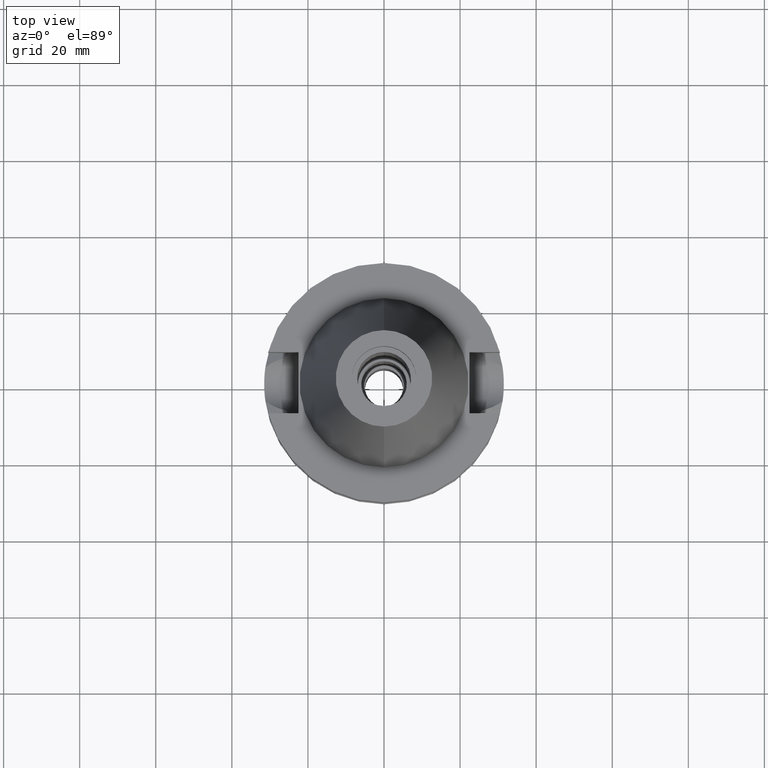
[diagram: clean part render]
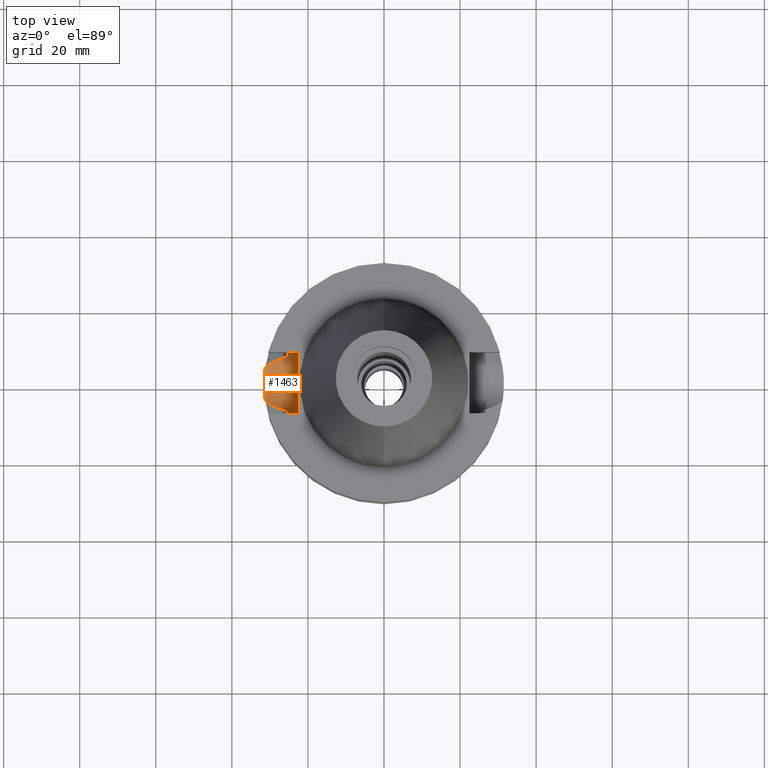
[diagram: same view with one face highlighted and labeled with its STEP entity id]
A machine part, top view. The second image highlights one B-rep face of the part: STEP entity #1463.
In plain terms, the highlighted cylindrical surface (edge-blend (fillet) strip) has radius 8.05 mm, axis along (-1, 0, 0).
Its self-contained STEP definition (entity closure, byte-faithful):
#177=CARTESIAN_POINT('',(-2.25E1,1.807578675541E-14,-1.495E1));
#178=DIRECTION('',(1.E0,0.E0,0.E0));
#179=DIRECTION('',(0.E0,-1.E0,1.919789379228E-14));
#180=AXIS2_PLACEMENT_3D('',#177,#178,#179);
#185=CARTESIAN_POINT('',(-2.25E1,1.807578675541E-14,-1.495E1));
#186=DIRECTION('',(1.E0,0.E0,0.E0));
#187=DIRECTION('',(0.E0,0.E0,-1.E0));
#188=AXIS2_PLACEMENT_3D('',#185,#186,#187);
#241=CARTESIAN_POINT('',(-2.553175183775E1,-7.097862220093E0,
-1.874774300139E1));
#242=CARTESIAN_POINT('',(-2.547271918594E1,-7.310208835141E0,
-1.835087385675E1));
#243=CARTESIAN_POINT('',(-2.536983558540E1,-7.660512735289E0,
-1.753882711767E1));
#244=CARTESIAN_POINT('',(-2.527033461079E1,-7.979621508937E0,
-1.625425445451E1));
#245=CARTESIAN_POINT('',(-2.524772266958E1,-8.05E0,-1.538828038445E1));
#246=CARTESIAN_POINT('',(-2.524772266958E1,-8.05E0,-1.495E1));
#361=CARTESIAN_POINT('',(-2.524772266958E1,8.05E0,-1.495E1));
#362=CARTESIAN_POINT('',(-2.524772266958E1,8.05E0,-1.538834950001E1));
#363=CARTESIAN_POINT('',(-2.527034219221E1,7.979597850830E0,-1.625441489124E1));
#364=CARTESIAN_POINT('',(-2.536984959230E1,7.660466517108E0,-1.753895015723E1));
#365=CARTESIAN_POINT('',(-2.547272650759E1,7.310182498380E0,-1.835092307933E1));
#366=CARTESIAN_POINT('',(-2.553175183775E1,7.097862220093E0,-1.874774300139E1));
#444=DIRECTION('',(1.E0,1.551559937893E-14,-3.620306521750E-14));
#445=VECTOR('',#444,2.747722669580E0);
#446=CARTESIAN_POINT('',(-2.524772266958E1,8.05E0,-1.495E1));
#447=LINE('',#446,#445);
#451=DIRECTION('',(-1.E0,1.616208268639E-14,-1.034373291929E-14));
#452=VECTOR('',#451,2.747722669580E0);
#453=CARTESIAN_POINT('',(-2.25E1,-8.05E0,-1.495E1));
#454=LINE('',#453,#452);
#458=CARTESIAN_POINT('',(-3.117899877609E1,-4.485536235554E0,
-2.163449434733E1));
#459=CARTESIAN_POINT('',(-3.081790690768E1,-4.759485314385E0,
-2.145066465791E1));
#460=CARTESIAN_POINT('',(-3.002924830243E1,-5.291914469826E0,
-2.104897836939E1));
#461=CARTESIAN_POINT('',(-2.847426700203E1,-6.083715656575E0,
-2.025542970766E1));
#462=CARTESIAN_POINT('',(-2.705383459640E1,-6.640442221704E0,
-1.952881381427E1));
#463=CARTESIAN_POINT('',(-2.604019647781E1,-6.958099501092E0,
-1.900895512728E1));
#464=CARTESIAN_POINT('',(-2.553175183775E1,-7.097862220093E0,
-1.874774300139E1));
#554=CARTESIAN_POINT('',(-2.553175183775E1,7.097862220093E0,-1.874774300139E1));
#555=CARTESIAN_POINT('',(-2.604301139702E1,6.957325728037E0,-1.901040128478E1));
#556=CARTESIAN_POINT('',(-2.700919654423E1,6.654600905991E0,-1.950590852273E1));
#557=CARTESIAN_POINT('',(-2.828273243056E1,6.156114099449E0,-2.015743109837E1));
#558=CARTESIAN_POINT('',(-2.939896234899E1,5.622905978368E0,-2.072740778783E1));
#559=CARTESIAN_POINT('',(-3.036659115201E1,5.065326816520E0,-2.122078619173E1));
#560=CARTESIAN_POINT('',(-3.092322003118E1,4.679587549588E0,-2.150427893306E1));
#561=CARTESIAN_POINT('',(-3.117899877609E1,4.485536235554E0,-2.163449434733E1));
#609=CARTESIAN_POINT('',(-3.117899877609E1,4.485536235554E0,-2.163449434733E1));
#610=CARTESIAN_POINT('',(-3.124432755678E1,4.031435350808E0,-2.193921238093E1));
#611=CARTESIAN_POINT('',(-3.135992226601E1,3.086731852897E0,-2.244039260075E1));
#612=CARTESIAN_POINT('',(-3.147352449813E1,1.574442090076E0,-2.289734580016E1));
#613=CARTESIAN_POINT('',(-3.151358048718E1,-1.471319843020E-2,
-2.305267495637E1));
#614=CARTESIAN_POINT('',(-3.147213491181E1,-1.599532263817E0,
-2.289189784277E1));
#615=CARTESIAN_POINT('',(-3.135823014352E1,-3.101891738597E0,
-2.243328986460E1));
#616=CARTESIAN_POINT('',(-3.124356931013E1,-4.036705929445E0,
-2.193567563301E1));
#617=CARTESIAN_POINT('',(-3.117899877609E1,-4.485536235554E0,
-2.163449434733E1));
#1061=VERTEX_POINT('',#458);
#1062=VERTEX_POINT('',#464);
#1065=VERTEX_POINT('',#554);
#1066=VERTEX_POINT('',#561);
#1069=VERTEX_POINT('',#361);
#1070=CARTESIAN_POINT('',(-2.25E1,8.05E0,-1.495E1));
#1071=VERTEX_POINT('',#1070);
#1072=CARTESIAN_POINT('',(-2.25E1,1.856870709207E-14,-2.3E1));
#1073=VERTEX_POINT('',#1072);
#1074=CARTESIAN_POINT('',(-2.25E1,-8.05E0,-1.495E1));
#1075=VERTEX_POINT('',#1074);
#1076=CARTESIAN_POINT('',(-2.524772266958E1,-8.05E0,-1.495E1));
#1077=VERTEX_POINT('',#1076);
#1444=CARTESIAN_POINT('',(-2.25E1,1.807578675541E-14,-1.495E1));
#1445=DIRECTION('',(-1.E0,0.E0,0.E0));
#1446=DIRECTION('',(0.E0,0.E0,-1.E0));
#1447=AXIS2_PLACEMENT_3D('',#1444,#1445,#1446);
#1448=CYLINDRICAL_SURFACE('',#1447,8.05E0);
#1450=ORIENTED_EDGE('',*,*,#1449,.F.);
#1452=ORIENTED_EDGE('',*,*,#1451,.F.);
#1454=ORIENTED_EDGE('',*,*,#1453,.F.);
#1455=ORIENTED_EDGE('',*,*,#1381,.F.);
#1456=ORIENTED_EDGE('',*,*,#1409,.T.);
#1457=ORIENTED_EDGE('',*,*,#1244,.F.);
#1458=ORIENTED_EDGE('',*,*,#1242,.F.);
#1459=ORIENTED_EDGE('',*,*,#1258,.T.);
#1460=ORIENTED_EDGE('',*,*,#1287,.F.);
#1461=EDGE_LOOP('',(#1450,#1452,#1454,#1455,#1456,#1457,#1458,#1459,#1460));
#1462=FACE_OUTER_BOUND('',#1461,.F.);
#181=CIRCLE('',#180,8.05E0);
#189=CIRCLE('',#188,8.05E0);
#247=B_SPLINE_CURVE_WITH_KNOTS('',3,(#241,#242,#243,#244,#245,#246),
.UNSPECIFIED.,.F.,.F.,(4,1,1,4),(0.E0,3.333333333333E-1,6.666666666667E-1,1.E0),
.UNSPECIFIED.);
#367=B_SPLINE_CURVE_WITH_KNOTS('',3,(#361,#362,#363,#364,#365,#366),
.UNSPECIFIED.,.F.,.F.,(4,1,1,4),(0.E0,3.333333333333E-1,6.666666666667E-1,1.E0),
.UNSPECIFIED.);
#465=B_SPLINE_CURVE_WITH_KNOTS('',3,(#458,#459,#460,#461,#462,#463,#464),
.UNSPECIFIED.,.F.,.F.,(4,1,1,1,4),(0.E0,2.5E-1,5.E-1,7.5E-1,1.E0),
.UNSPECIFIED.);
#562=B_SPLINE_CURVE_WITH_KNOTS('',3,(#554,#555,#556,#557,#558,#559,#560,#561),
.UNSPECIFIED.,.F.,.F.,(4,1,1,1,1,4),(0.E0,2.E-1,4.E-1,6.E-1,8.E-1,1.E0),
.UNSPECIFIED.);
#618=B_SPLINE_CURVE_WITH_KNOTS('',3,(#609,#610,#611,#612,#613,#614,#615,#616,
#617),.UNSPECIFIED.,.F.,.F.,(4,1,1,1,1,1,4),(0.E0,1.666666666667E-1,
3.333333333333E-1,5.E-1,6.666666666667E-1,8.333333333333E-1,1.E0),
.UNSPECIFIED.);
#1242=EDGE_CURVE('',#1075,#1073,#181,.T.);
#1244=EDGE_CURVE('',#1073,#1071,#189,.T.);
#1258=EDGE_CURVE('',#1075,#1077,#454,.T.);
#1287=EDGE_CURVE('',#1062,#1077,#247,.T.);
#1381=EDGE_CURVE('',#1069,#1065,#367,.T.);
#1409=EDGE_CURVE('',#1069,#1071,#447,.T.);
#1449=EDGE_CURVE('',#1061,#1062,#465,.T.);
#1451=EDGE_CURVE('',#1066,#1061,#618,.T.);
#1453=EDGE_CURVE('',#1065,#1066,#562,.T.);
#1463=ADVANCED_FACE('',(#1462),#1448,.F.);